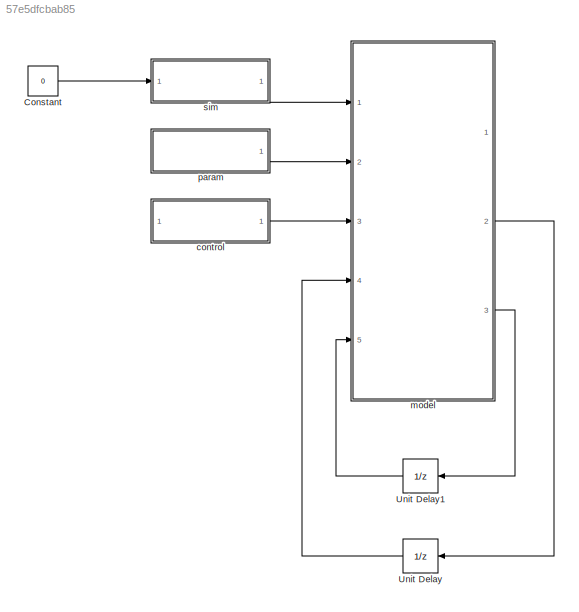
MODEL slx_57e5dfcbab85
KIND model
BLOCK [Constant] Constant
  OutDataTypeStr = int16
  Value = 0
BLOCK [UnitDelay] Unit Delay
  InputProcessing = Elements as channels (sample based)
  SampleTime = -1
BLOCK [UnitDelay] Unit Delay1
  InputProcessing = Elements as channels (sample based)
  SampleTime = -1
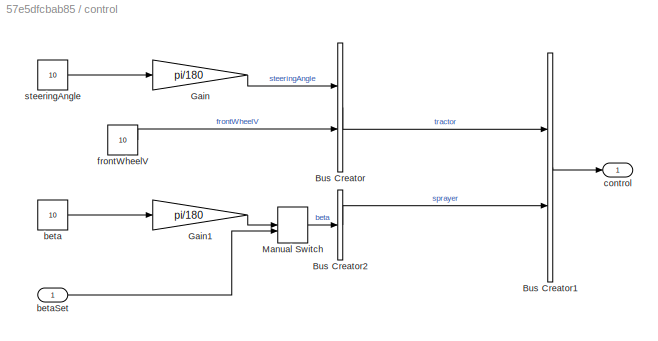
BLOCK [SubSystem] control
  Ports = [1, 1]
  RequestExecContextInheritance = off
BLOCK [BusCreator] control/Bus Creator
  DisplayOption = bar
  Inputs = 2
  OutDataTypeStr = Bus: controlTractorBusType
  Ports = [2, 1]
BLOCK [BusCreator] control/Bus Creator1
  DisplayOption = bar
  Inputs = 2
  OutDataTypeStr = Bus: controlBusType
  Ports = [2, 1]
BLOCK [BusCreator] control/Bus Creator2
  DisplayOption = bar
  Inputs = 1
  OutDataTypeStr = Bus: controlSprayerBusType
  Ports = [1, 1]
BLOCK [Gain] control/Gain
  Gain = pi/180
  OutDataTypeStr = Inherit: Inherit via internal rule
  ParamDataTypeStr = Inherit: Inherit via internal rule
  SaturateOnIntegerOverflow = off
BLOCK [Gain] control/Gain1
  Gain = pi/180
  OutDataTypeStr = Inherit: Inherit via internal rule
  ParamDataTypeStr = Inherit: Inherit via internal rule
  SaturateOnIntegerOverflow = off
BLOCK [ManualSwitch] control/Manual Switch
BLOCK [Constant] control/beta
  OutDataTypeStr = double
  Value = 10
BLOCK [Inport] control/betaSet
  IconDisplay = Port number
BLOCK [Outport] control/control
  IconDisplay = Port number
BLOCK [Constant] control/frontWheelV
  OutDataTypeStr = double
  Value = 10
BLOCK [Constant] control/steeringAngle
  OutDataTypeStr = double
  Value = 10
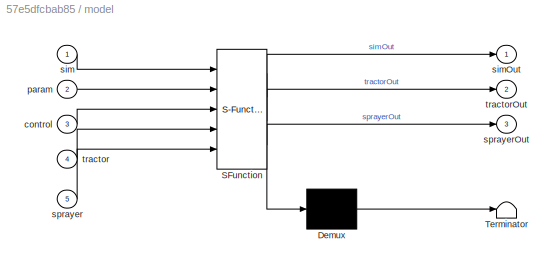
BLOCK [SubSystem] model
  ErrorFcn = Stateflow.Translate.translate
  PermitHierarchicalResolution = ExplicitOnly
  Ports = [5, 3]
  RequestExecContextInheritance = off
  SFBlockType = MATLAB Function
  TreatAsAtomicUnit = on
BLOCK [Demux] model/ Demux 
  Outputs = 1
  Ports = [1, 1]
BLOCK [S-Function] model/ SFunction 
  EnableBusSupport = on
  FunctionName = sf_sfun
  PortCounts = [5 4]
  Ports = [5, 4]
  Tag = Stateflow S-Function envMod 2
BLOCK [Terminator] model/ Terminator 
BLOCK [Inport] model/control
  IconDisplay = Port number
  Port = 3
BLOCK [Inport] model/param
  IconDisplay = Port number
  Port = 2
BLOCK [Inport] model/sim
  IconDisplay = Port number
BLOCK [Outport] model/simOut
  IconDisplay = Port number
BLOCK [Inport] model/sprayer
  IconDisplay = Port number
  Port = 5
BLOCK [Outport] model/sprayerOut
  IconDisplay = Port number
  Port = 3
BLOCK [Inport] model/tractor
  IconDisplay = Port number
  Port = 4
BLOCK [Outport] model/tractorOut
  IconDisplay = Port number
  Port = 2
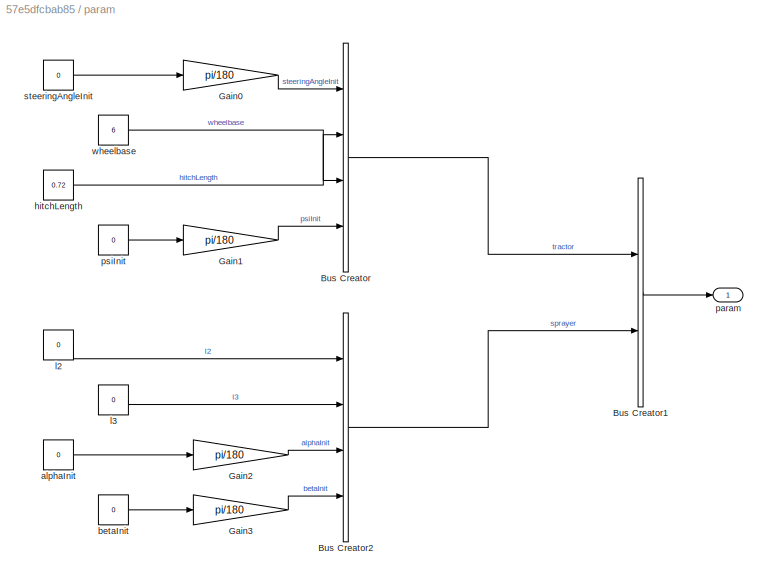
BLOCK [SubSystem] param
  Ports = [0, 1]
  RequestExecContextInheritance = off
BLOCK [BusCreator] param/Bus Creator
  DisplayOption = bar
  OutDataTypeStr = Bus: paramTractorBusType
  Ports = [4, 1]
BLOCK [BusCreator] param/Bus Creator1
  DisplayOption = bar
  Inputs = 2
  OutDataTypeStr = Bus: paramBusType
  Ports = [2, 1]
BLOCK [BusCreator] param/Bus Creator2
  DisplayOption = bar
  OutDataTypeStr = Bus: paramSprayerBusType
  Ports = [4, 1]
BLOCK [Gain] param/Gain0
  Gain = pi/180
  OutDataTypeStr = Inherit: Inherit via internal rule
  ParamDataTypeStr = Inherit: Inherit via internal rule
  SaturateOnIntegerOverflow = off
BLOCK [Gain] param/Gain1
  Gain = pi/180
  OutDataTypeStr = Inherit: Inherit via internal rule
  ParamDataTypeStr = Inherit: Inherit via internal rule
  SaturateOnIntegerOverflow = off
BLOCK [Gain] param/Gain2
  Gain = pi/180
  OutDataTypeStr = Inherit: Inherit via internal rule
  ParamDataTypeStr = Inherit: Inherit via internal rule
  SaturateOnIntegerOverflow = off
BLOCK [Gain] param/Gain3
  Gain = pi/180
  OutDataTypeStr = Inherit: Inherit via internal rule
  ParamDataTypeStr = Inherit: Inherit via internal rule
  SaturateOnIntegerOverflow = off
BLOCK [Constant] param/alphaInit
  OutDataTypeStr = double
  Value = 0
BLOCK [Constant] param/betaInit
  OutDataTypeStr = double
  Value = 0
BLOCK [Constant] param/hitchLength
  OutDataTypeStr = double
  Value = 0.72
BLOCK [Constant] param/l2
  OutDataTypeStr = double
  Value = 0
BLOCK [Constant] param/l3
  OutDataTypeStr = double
  Value = 0
BLOCK [Outport] param/param
  IconDisplay = Port number
BLOCK [Constant] param/psiInit
  OutDataTypeStr = double
  Value = 0
BLOCK [Constant] param/steeringAngleInit
  OutDataTypeStr = double
  Value = 0
BLOCK [Constant] param/wheelbase
  OutDataTypeStr = double
  Value = 6
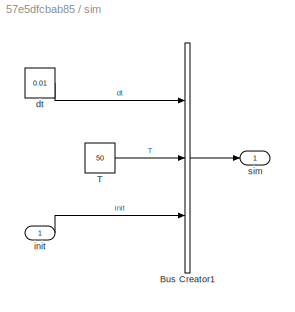
BLOCK [SubSystem] sim
  Ports = [1, 1]
  RequestExecContextInheritance = off
BLOCK [BusCreator] sim/Bus Creator1
  DisplayOption = bar
  Inputs = 3
  OutDataTypeStr = Bus: simBusType
  Ports = [3, 1]
BLOCK [Constant] sim/T
  OutDataTypeStr = int16
  Value = 50
BLOCK [Constant] sim/dt
  OutDataTypeStr = int16
  Value = 0.01
BLOCK [Inport] sim/init
  IconDisplay = Port number
  OutDataTypeStr = int16
BLOCK [Outport] sim/sim
  IconDisplay = Port number
LINE Constant:1 -> sim:1
LINE Unit Delay1:1 -> model:5
LINE Unit Delay:1 -> model:4
LINE control/Bus Creator1:1 -> control/control:1
LINE control/Bus Creator2:1 -> control/Bus Creator1:2
LINE control/Bus Creator:1 -> control/Bus Creator1:1
LINE control/Gain1:1 -> control/Manual Switch:1
LINE control/Gain:1 -> control/Bus Creator:1
LINE control/Manual Switch:1 -> control/Bus Creator2:1
LINE control/beta:1 -> control/Gain1:1
LINE control/betaSet:1 -> control/Manual Switch:2
LINE control/frontWheelV:1 -> control/Bus Creator:2
LINE control/steeringAngle:1 -> control/Gain:1
LINE control:1 -> model:3
LINE model:2 -> Unit Delay:1
LINE model:3 -> Unit Delay1:1
LINE param/Bus Creator1:1 -> param/param:1
LINE param/Bus Creator2:1 -> param/Bus Creator1:2
LINE param/Bus Creator:1 -> param/Bus Creator1:1
LINE param/Gain0:1 -> param/Bus Creator:1
LINE param/Gain1:1 -> param/Bus Creator:4
LINE param/Gain2:1 -> param/Bus Creator2:3
LINE param/Gain3:1 -> param/Bus Creator2:4
LINE param/alphaInit:1 -> param/Gain2:1
LINE param/betaInit:1 -> param/Gain3:1
LINE param/hitchLength:1 -> param/Bus Creator:2
LINE param/l2:1 -> param/Bus Creator2:1
LINE param/l3:1 -> param/Bus Creator2:2
LINE param/psiInit:1 -> param/Gain1:1
LINE param/steeringAngleInit:1 -> param/Gain0:1
LINE param/wheelbase:1 -> param/Bus Creator:3
LINE param:1 -> model:2
LINE sim/Bus Creator1:1 -> sim/sim:1
LINE sim/T:1 -> sim/Bus Creator1:2
LINE sim/dt:1 -> sim/Bus Creator1:1
LINE sim/init:1 -> sim/Bus Creator1:3
LINE sim:1 -> model:1
CHART model states=1 transitions=1
  STATE_LABEL 'eML_blk_kernel()'
  STATE_LABEL 'SCRIPT:\nfunction [simOut, tractorOut, sprayerOut] = model(sim, param, control, tractor, sprayer)\n    if (sim.init == 0)\n        simOut.init                = (int16)1;\n        \n        % tractor\n        tractorOut.frontX          = 0;\n        tractorOut.frontY          = 0;\n\n        tractorOut.rearX           = tractor.frontX - ...\n                                  param.tractor.wheelbase * ...\n   ...<+3608ch>'
